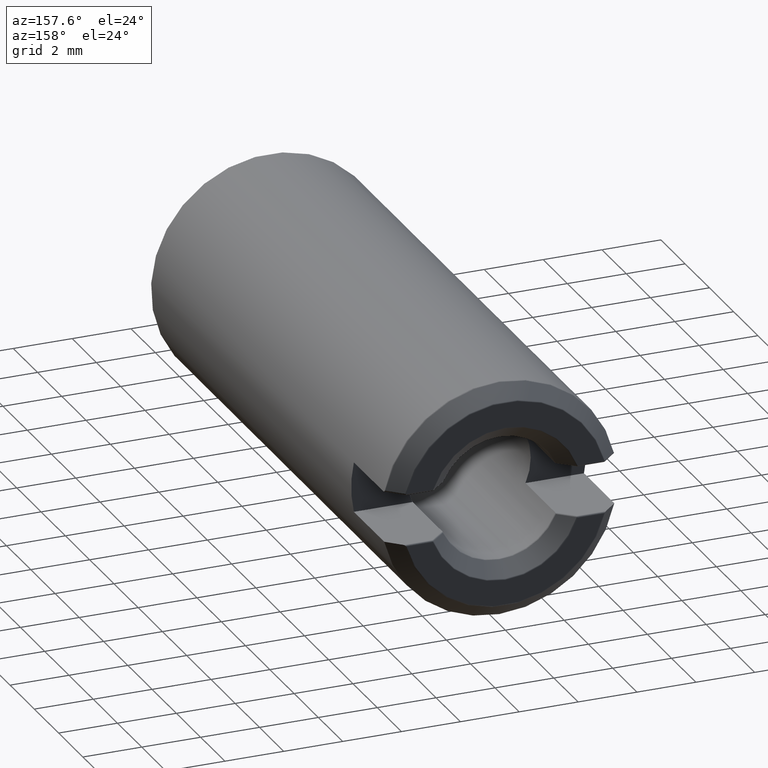
[diagram: clean part render]
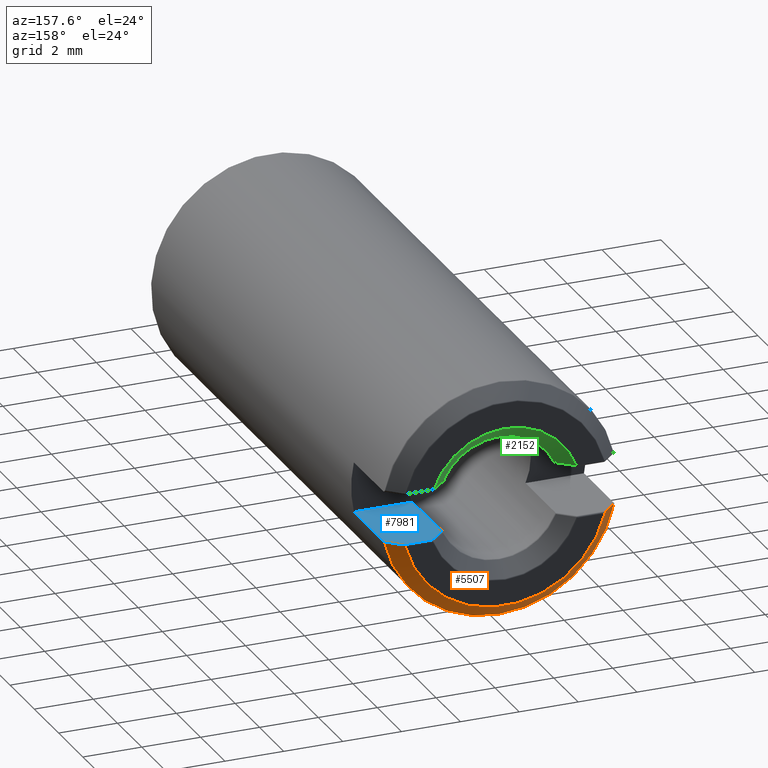
[diagram: same view with three faces highlighted in distinct colors, each labeled with its STEP entity id]
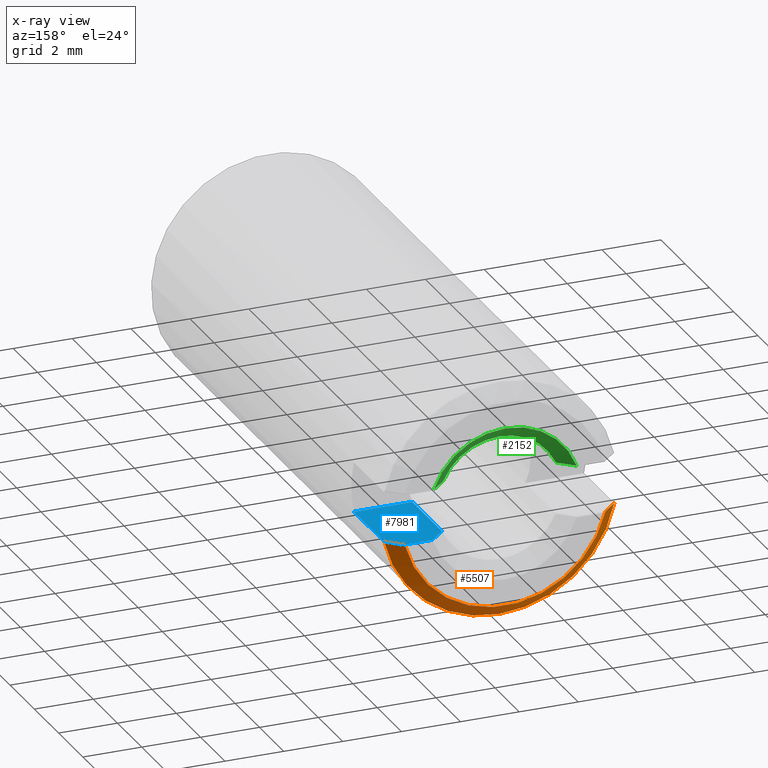
[diagram: x-ray of the same camera — body ghosted, the three highlighted faces saturated]
A machine part, auxiliary view with three faces highlighted in distinct colors.
The next image is the same camera in x-ray (body ghosted, the three faces saturated) — at least one of them is partly hidden behind the body in this view.
Their STEP definitions:

[orange] entity #5507 — the highlighted conical surface has half-angle 45 deg.
#854 = AXIS2_PLACEMENT_3D ( 'NONE', #10848, #16114, #2962 ) ;
#860 = CARTESIAN_POINT ( 'NONE',  ( 3.413783755023975800, 19.97978918212717800, -0.8590785040085277000 ) ) ;
#1144 = CARTESIAN_POINT ( 'NONE',  ( -3.406628348233122800, 19.98535533905932500, -0.8646446609406720500 ) ) ;
#1414 = ORIENTED_EDGE ( 'NONE', *, *, #12482, .F. ) ;
#1785 = CARTESIAN_POINT ( 'NONE',  ( -3.406628348233122800, 19.98535533905932500, -0.8646446609406720500 ) ) ;
#2116 = CARTESIAN_POINT ( 'NONE',  ( 3.421557193899200200, 19.97320914280686200, -0.8551126045072399200 ) ) ;
#2309 = VERTEX_POINT ( 'NONE', #16806 ) ;
#2962 = DIRECTION ( 'NONE',  ( 0.0000000000000000000, 0.0000000000000000000, 1.000000000000000000 ) ) ;
#2989 = CARTESIAN_POINT ( 'NONE',  ( 3.406628348233122300, 19.98535533905932500, -0.8646446609406728300 ) ) ;
#3139 = ORIENTED_EDGE ( 'NONE', *, *, #3599, .T. ) ;
#3364 = CARTESIAN_POINT ( 'NONE',  ( 3.429278687820470400, 19.96629116178431200, -0.8527284647201165400 ) ) ;
#3599 = EDGE_CURVE ( 'NONE', #9604, #12897, #13572, .T. ) ;
#4207 = CONICAL_SURFACE ( 'NONE', #11415, 4.000000000000001800, 0.7853981633974533900 ) ;
#4566 = CARTESIAN_POINT ( 'NONE',  ( 3.446737587914361400, 19.95000000000820300, -0.8500000000000004200 ) ) ;
#4725 = CARTESIAN_POINT ( 'NONE',  ( 3.600961503309973100, 19.80026215038831700, -0.8500000000000004200 ) ) ;
#4800 = CARTESIAN_POINT ( 'NONE',  ( 3.406628348233122300, 19.98535533905932500, -0.8646446609406728300 ) ) ;
#5507 = ADVANCED_FACE ( 'NONE', ( #11381 ), #4207, .T. ) ;
#5510 = EDGE_CURVE ( 'NONE', #7641, #2309, #13016, .T. ) ;
#6113 = CARTESIAN_POINT ( 'NONE',  ( 3.435093850324896000, 19.96108113581539100, -0.8509329364924507200 ) ) ;
#6455 = CARTESIAN_POINT ( 'NONE',  ( -3.421100546148008200, 19.97347055789400700, -0.8558510145966644600 ) ) ;
#6947 = CARTESIAN_POINT ( 'NONE',  ( -3.446737587922805700, 19.95000000000000600, -0.8499999999999995300 ) ) ;
#7074 = CARTESIAN_POINT ( 'NONE',  ( 3.446737587914361400, 19.95000000000820300, -0.8500000000000004200 ) ) ;
#7155 = ORIENTED_EDGE ( 'NONE', *, *, #9229, .T. ) ;
#7475 = CARTESIAN_POINT ( 'NONE',  ( 3.446737587914361400, 19.95000000000820300, -0.8500000000000004200 ) ) ;
#7641 = VERTEX_POINT ( 'NONE', #14487 ) ;
#7952 = ORIENTED_EDGE ( 'NONE', *, *, #11839, .T. ) ;
#8123 = VERTEX_POINT ( 'NONE', #7074 ) ;
#8200 = CARTESIAN_POINT ( 'NONE',  ( -3.600963028556099000, 19.80026066950853500, -0.8499999999999995300 ) ) ;
#9229 = EDGE_CURVE ( 'NONE', #12897, #12926, #15844, .T. ) ;
#9603 = CARTESIAN_POINT ( 'NONE',  ( -3.908644266238622500, 19.49999999999999300, -0.8499999999999995300 ) ) ;
#9604 = VERTEX_POINT ( 'NONE', #10985 ) ;
#9750 = DIRECTION ( 'NONE',  ( -0.0000000000000000000, -1.000000000000000000, -0.0000000000000000000 ) ) ;
#10848 = CARTESIAN_POINT ( 'NONE',  ( 0.0000000000000000000, 19.49999999999999600, 0.0000000000000000000 ) ) ;
#10985 = CARTESIAN_POINT ( 'NONE',  ( -3.446737587922805700, 19.95000000000000600, -0.8499999999999995300 ) ) ;
#11381 = FACE_OUTER_BOUND ( 'NONE', #12270, .T. ) ;
#11415 = AXIS2_PLACEMENT_3D ( 'NONE', #13440, #9750, #13555 ) ;
#11638 = CARTESIAN_POINT ( 'NONE',  ( -3.446737587922805700, 19.95000000000000600, -0.8499999999999995300 ) ) ;
#11758 = CARTESIAN_POINT ( 'NONE',  ( -3.438308068090482300, 19.95818432193076200, -0.8499999999999995300 ) ) ;
#11839 = EDGE_CURVE ( 'NONE', #12926, #8123, #13548, .T. ) ;
#12236 = ORIENTED_EDGE ( 'NONE', *, *, #5510, .F. ) ;
#12270 = EDGE_LOOP ( 'NONE', ( #7155, #7952, #1414, #12236, #13454, #3139 ) ) ;
#12440 = CARTESIAN_POINT ( 'NONE',  ( 3.440989608047434300, 19.95558078261709100, -0.8500000000004902500 ) ) ;
#12482 = EDGE_CURVE ( 'NONE', #2309, #8123, #16050, .T. ) ;
#12775 = CARTESIAN_POINT ( 'NONE',  ( 0.0000000000000000000, 19.98535533905932500, 0.0000000000000000000 ) ) ;
#12897 = VERTEX_POINT ( 'NONE', #1785 ) ;
#12926 = VERTEX_POINT ( 'NONE', #2989 ) ;
#12928 = B_SPLINE_CURVE_WITH_KNOTS ( 'NONE', 3,
 ( #6947, #8200, #16130, #9603 ),
 .UNSPECIFIED., .F., .F.,
 ( 4, 4 ),
 ( 0.01633955276823465700, 0.01698314241241307600 ),
 .UNSPECIFIED. ) ;
#12949 = CARTESIAN_POINT ( 'NONE',  ( -3.411266994350519600, 19.98174695829261400, -0.8610362801739589500 ) ) ;
#13016 = CIRCLE ( 'NONE', #854, 4.000000000000001800 ) ;
#13440 = CARTESIAN_POINT ( 'NONE',  ( 0.0000000000000000000, 19.49999999999999600, 0.0000000000000000000 ) ) ;
#13454 = ORIENTED_EDGE ( 'NONE', *, *, #16387, .F. ) ;
#13548 = B_SPLINE_CURVE_WITH_KNOTS ( 'NONE', 3,
 ( #4800, #860, #2116, #3364, #6113, #12440, #4566 ),
 .UNSPECIFIED., .F., .F.,
 ( 4, 3, 4 ),
 ( 0.0000000000000000000, 3.191357815980696000E-005, 5.579866581709318100E-005 ),
 .UNSPECIFIED. ) ;
#13555 = DIRECTION ( 'NONE',  ( 0.0000000000000000000, 0.0000000000000000000, -1.000000000000000000 ) ) ;
#13572 = B_SPLINE_CURVE_WITH_KNOTS ( 'NONE', 3,
 ( #11638, #11758, #14472, #6455, #16971, #12949, #1144 ),
 .UNSPECIFIED., .F., .F.,
 ( 4, 3, 4 ),
 ( 4.964888371025411900E-018, 3.524711861456428000E-005, 5.575765607681479800E-005 ),
 .UNSPECIFIED. ) ;
#14006 = DIRECTION ( 'NONE',  ( -0.0000000000000000000, -1.000000000000000000, -0.0000000000000000000 ) ) ;
#14119 = DIRECTION ( 'NONE',  ( 0.0000000000000000000, 0.0000000000000000000, 1.000000000000000000 ) ) ;
#14199 = AXIS2_PLACEMENT_3D ( 'NONE', #12775, #14006, #14119 ) ;
#14472 = CARTESIAN_POINT ( 'NONE',  ( -3.429520768752341900, 19.96623552209397400, -0.8520047126928127500 ) ) ;
#14487 = CARTESIAN_POINT ( 'NONE',  ( -3.908644266238622500, 19.49999999999999300, -0.8499999999999995300 ) ) ;
#15251 = CARTESIAN_POINT ( 'NONE',  ( 3.754901000658285700, 19.65023193337083600, -0.8500000000000004200 ) ) ;
#15844 = CIRCLE ( 'NONE', #14199, 3.514644660940668100 ) ;
#16050 = B_SPLINE_CURVE_WITH_KNOTS ( 'NONE', 3,
 ( #16726, #15251, #4725, #7475 ),
 .UNSPECIFIED., .F., .F.,
 ( 4, 4 ),
 ( 0.006837128135379534400, 0.007481998324507780100 ),
 .UNSPECIFIED. ) ;
#16114 = DIRECTION ( 'NONE',  ( -0.0000000000000000000, -1.000000000000000000, -0.0000000000000000000 ) ) ;
#16130 = CARTESIAN_POINT ( 'NONE',  ( -3.754902345862619400, 19.65023061888953400, -0.8499999999999995300 ) ) ;
#16387 = EDGE_CURVE ( 'NONE', #9604, #7641, #12928, .T. ) ;
#16726 = CARTESIAN_POINT ( 'NONE',  ( 3.908644266238617200, 19.49999999999999600, -0.8500000000000004200 ) ) ;
#16806 = CARTESIAN_POINT ( 'NONE',  ( 3.908644266238617200, 19.49999999999999600, -0.8500000000000004200 ) ) ;
#16971 = CARTESIAN_POINT ( 'NONE',  ( -3.416158209025641000, 19.97771723731051100, -0.8581086414524502500 ) ) ;

[blue] entity #7981 — the highlighted planar face has unit normal (-0, 0, -1).
#63 = CARTESIAN_POINT ( 'NONE',  ( 2.215812044525621500, 19.72090446999042600, -0.8500000000000003100 ) ) ;
#276 = CARTESIAN_POINT ( 'NONE',  ( 12.49999999999999800, 17.00000000000000000, -0.8500000000000014200 ) ) ;
#791 = CARTESIAN_POINT ( 'NONE',  ( 3.908644266238617200, 0.0000000000000000000, -0.8500000000000004200 ) ) ;
#826 = VECTOR ( 'NONE', #2613, 1000.000000000000000 ) ;
#1017 = LINE ( 'NONE', #9766, #3440 ) ;
#1633 = CARTESIAN_POINT ( 'NONE',  ( 3.908644266238617200, 17.00000000000000000, -0.8500000000000004200 ) ) ;
#2309 = VERTEX_POINT ( 'NONE', #16806 ) ;
#2613 = DIRECTION ( 'NONE',  ( -1.000000000000000000, 0.0000000000000000000, 1.214306433183765000E-016 ) ) ;
#2799 = EDGE_CURVE ( 'NONE', #10881, #11293, #6939, .T. ) ;
#3437 = VECTOR ( 'NONE', #9327, 1000.000000000000000 ) ;
#3440 = VECTOR ( 'NONE', #8424, 1000.000000000000000 ) ;
#4192 = ORIENTED_EDGE ( 'NONE', *, *, #16786, .T. ) ;
#4695 = VECTOR ( 'NONE', #10038, 1000.000000000000000 ) ;
#4725 = CARTESIAN_POINT ( 'NONE',  ( 3.600961503309973100, 19.80026215038831700, -0.8500000000000004200 ) ) ;
#5364 = DIRECTION ( 'NONE',  ( -1.214306433183765000E-016, 0.0000000000000000000, -1.000000000000000000 ) ) ;
#5380 = CARTESIAN_POINT ( 'NONE',  ( 2.461325752192560700, 19.94999999999999900, -0.8500000000000003100 ) ) ;
#6393 = FACE_OUTER_BOUND ( 'NONE', #13717, .T. ) ;
#6554 = CARTESIAN_POINT ( 'NONE',  ( 1.920286436967147300, 20.00000000000000000, -0.8500000000000002000 ) ) ;
#6583 = CARTESIAN_POINT ( 'NONE',  ( 2.379734714731919400, 19.87337112092297900, -0.8500000000000003100 ) ) ;
#6939 = LINE ( 'NONE', #6554, #3437 ) ;
#7074 = CARTESIAN_POINT ( 'NONE',  ( 3.446737587914361400, 19.95000000000820300, -0.8500000000000004200 ) ) ;
#7089 = ORIENTED_EDGE ( 'NONE', *, *, #15957, .T. ) ;
#7365 = ORIENTED_EDGE ( 'NONE', *, *, #12482, .T. ) ;
#7475 = CARTESIAN_POINT ( 'NONE',  ( 3.446737587914361400, 19.95000000000820300, -0.8500000000000004200 ) ) ;
#7894 = CARTESIAN_POINT ( 'NONE',  ( 2.297921189293646600, 19.79697792691201400, -0.8500000000000003100 ) ) ;
#7981 = ADVANCED_FACE ( 'NONE', ( #6393 ), #9343, .F. ) ;
#8123 = VERTEX_POINT ( 'NONE', #7074 ) ;
#8424 = DIRECTION ( 'NONE',  ( -1.000000000000000000, 0.0000000000000000000, 1.214306433183765000E-016 ) ) ;
#8804 = LINE ( 'NONE', #791, #4695 ) ;
#9244 = CARTESIAN_POINT ( 'NONE',  ( 2.117787020285274200, 19.63008507977690800, -0.8500000000000003100 ) ) ;
#9327 = DIRECTION ( 'NONE',  ( 0.0000000000000000000, -1.000000000000000000, 0.0000000000000000000 ) ) ;
#9343 = PLANE ( 'NONE',  #12734 ) ;
#9347 = CARTESIAN_POINT ( 'NONE',  ( 1.920286436967147300, 19.45002032792619300, -0.8500000000000002000 ) ) ;
#9400 = DIRECTION ( 'NONE',  ( -1.000000000000000000, 0.0000000000000000000, 1.214306433183765000E-016 ) ) ;
#9511 = ORIENTED_EDGE ( 'NONE', *, *, #10771, .T. ) ;
#9766 = CARTESIAN_POINT ( 'NONE',  ( 12.49999999999999800, 17.00000000000000000, -0.8500000000000014200 ) ) ;
#10038 = DIRECTION ( 'NONE',  ( 0.0000000000000000000, 1.000000000000000000, 0.0000000000000000000 ) ) ;
#10677 = CARTESIAN_POINT ( 'NONE',  ( 1.920286436967147300, 19.45002032792619300, -0.8500000000000002000 ) ) ;
#10771 = EDGE_CURVE ( 'NONE', #8123, #15723, #11919, .T. ) ;
#10881 = VERTEX_POINT ( 'NONE', #9347 ) ;
#11293 = VERTEX_POINT ( 'NONE', #15456 ) ;
#11355 = VERTEX_POINT ( 'NONE', #1633 ) ;
#11919 = LINE ( 'NONE', #15658, #826 ) ;
#11942 = CARTESIAN_POINT ( 'NONE',  ( 2.019342555962501800, 19.53971398603897900, -0.8500000000000002000 ) ) ;
#12482 = EDGE_CURVE ( 'NONE', #2309, #8123, #16050, .T. ) ;
#12734 = AXIS2_PLACEMENT_3D ( 'NONE', #276, #5364, #9400 ) ;
#13289 = ORIENTED_EDGE ( 'NONE', *, *, #16439, .F. ) ;
#13717 = EDGE_LOOP ( 'NONE', ( #9511, #4192, #13937, #13289, #7089, #7365 ) ) ;
#13937 = ORIENTED_EDGE ( 'NONE', *, *, #2799, .T. ) ;
#15251 = CARTESIAN_POINT ( 'NONE',  ( 3.754901000658285700, 19.65023193337083600, -0.8500000000000004200 ) ) ;
#15456 = CARTESIAN_POINT ( 'NONE',  ( 1.920286436967147300, 17.00000000000000000, -0.8500000000000002000 ) ) ;
#15658 = CARTESIAN_POINT ( 'NONE',  ( 2.457132475061128300, 19.94999999999999900, -0.8500000000000003100 ) ) ;
#15723 = VERTEX_POINT ( 'NONE', #5380 ) ;
#15897 = CARTESIAN_POINT ( 'NONE',  ( 2.461325752192560700, 19.94999999999999900, -0.8500000000000003100 ) ) ;
#15957 = EDGE_CURVE ( 'NONE', #11355, #2309, #8804, .T. ) ;
#16050 = B_SPLINE_CURVE_WITH_KNOTS ( 'NONE', 3,
 ( #16726, #15251, #4725, #7475 ),
 .UNSPECIFIED., .F., .F.,
 ( 4, 4 ),
 ( 0.006837128135379534400, 0.007481998324507780100 ),
 .UNSPECIFIED. ) ;
#16092 = B_SPLINE_CURVE_WITH_KNOTS ( 'NONE', 3,
 ( #15897, #6583, #7894, #63, #9244, #11942, #10677 ),
 .UNSPECIFIED., .F., .F.,
 ( 4, 3, 4 ),
 ( 1.433280826459710200E-016, 0.0003358001526545682700, 0.0007366943400334867000 ),
 .UNSPECIFIED. ) ;
#16439 = EDGE_CURVE ( 'NONE', #11355, #11293, #1017, .T. ) ;
#16726 = CARTESIAN_POINT ( 'NONE',  ( 3.908644266238617200, 19.49999999999999600, -0.8500000000000004200 ) ) ;
#16786 = EDGE_CURVE ( 'NONE', #15723, #10881, #16092, .T. ) ;
#16806 = CARTESIAN_POINT ( 'NONE',  ( 3.908644266238617200, 19.49999999999999600, -0.8500000000000004200 ) ) ;

[green] entity #2152 — the highlighted conical surface has half-angle 45 deg.
#1443 = CARTESIAN_POINT ( 'NONE',  ( 0.0000000000000000000, 19.51464466094066800, 0.0000000000000000000 ) ) ;
#2152 = ADVANCED_FACE ( 'NONE', ( #15187 ), #12113, .F. ) ;
#2386 = DIRECTION ( 'NONE',  ( 0.0000000000000000000, 1.000000000000000000, 0.0000000000000000000 ) ) ;
#2615 = ORIENTED_EDGE ( 'NONE', *, *, #5694, .T. ) ;
#2736 = CARTESIAN_POINT ( 'NONE',  ( 1.920453811368555900, 19.51464466094066800, 0.8852000906263278700 ) ) ;
#2748 = DIRECTION ( 'NONE',  ( 0.0000000000000000000, 0.0000000000000000000, 1.000000000000000000 ) ) ;
#3420 = B_SPLINE_CURVE_WITH_KNOTS ( 'NONE', 3,
 ( #5152, #14312, #3595, #10167, #4984, #15605, #10280 ),
 .UNSPECIFIED., .F., .F.,
 ( 4, 3, 4 ),
 ( 0.0000000000000000000, 0.0003568470537110428600, 0.0006923198707791736400 ),
 .UNSPECIFIED. ) ;
#3515 = CARTESIAN_POINT ( 'NONE',  ( -2.428120634500107000, 19.98535533905932500, 0.8878583296435214000 ) ) ;
#3595 = CARTESIAN_POINT ( 'NONE',  ( -2.095885261583293700, 19.67532775983235600, 0.8862450341868494100 ) ) ;
#4860 = ORIENTED_EDGE ( 'NONE', *, *, #13143, .T. ) ;
#4984 = CARTESIAN_POINT ( 'NONE',  ( -2.265005027130703400, 19.83234456096735000, 0.8871185304477248200 ) ) ;
#5039 = CARTESIAN_POINT ( 'NONE',  ( 2.428120634500107000, 19.98535533905932500, 0.8878583296435207400 ) ) ;
#5152 = CARTESIAN_POINT ( 'NONE',  ( -1.920453811368555400, 19.51464466094066800, 0.8852000906263283200 ) ) ;
#5694 = EDGE_CURVE ( 'NONE', #6127, #16999, #6861, .T. ) ;
#5803 = CIRCLE ( 'NONE', #9908, 2.114644660940669100 ) ;
#6127 = VERTEX_POINT ( 'NONE', #3515 ) ;
#6281 = VERTEX_POINT ( 'NONE', #6387 ) ;
#6387 = CARTESIAN_POINT ( 'NONE',  ( -1.920453811368555400, 19.51464466094066800, 0.8852000906263283200 ) ) ;
#6392 = EDGE_CURVE ( 'NONE', #6281, #6127, #3420, .T. ) ;
#6597 = EDGE_CURVE ( 'NONE', #16999, #15768, #7009, .T. ) ;
#6695 = CARTESIAN_POINT ( 'NONE',  ( 1.920453811368555900, 19.51464466094066800, 0.8852000906263278700 ) ) ;
#6861 = CIRCLE ( 'NONE', #13167, 2.585355339059332000 ) ;
#7009 = B_SPLINE_CURVE_WITH_KNOTS ( 'NONE', 3,
 ( #5039, #14193, #16803, #12954, #14310, #16976, #6695 ),
 .UNSPECIFIED., .F., .F.,
 ( 4, 3, 4 ),
 ( 4.145467954643513100E-017, 0.0003354742628745116500, 0.0006923228545096602900 ),
 .UNSPECIFIED. ) ;
#7319 = DIRECTION ( 'NONE',  ( 0.0000000000000000000, 1.000000000000000000, 0.0000000000000000000 ) ) ;
#8270 = ORIENTED_EDGE ( 'NONE', *, *, #6392, .T. ) ;
#8702 = AXIS2_PLACEMENT_3D ( 'NONE', #16629, #7319, #9993 ) ;
#9908 = AXIS2_PLACEMENT_3D ( 'NONE', #1443, #10574, #2748 ) ;
#9993 = DIRECTION ( 'NONE',  ( 0.0000000000000000000, 0.0000000000000000000, 1.000000000000000000 ) ) ;
#10167 = CARTESIAN_POINT ( 'NONE',  ( -2.183055609533193700, 19.75625980904975200, 0.8866952652568073100 ) ) ;
#10280 = CARTESIAN_POINT ( 'NONE',  ( -2.428120634500107000, 19.98535533905932500, 0.8878583296435214000 ) ) ;
#10431 = EDGE_LOOP ( 'NONE', ( #13755, #4860, #8270, #2615 ) ) ;
#10574 = DIRECTION ( 'NONE',  ( -0.0000000000000000000, -1.000000000000000000, -0.0000000000000000000 ) ) ;
#11352 = DIRECTION ( 'NONE',  ( 0.0000000000000000000, 0.0000000000000000000, -1.000000000000000000 ) ) ;
#12113 = CONICAL_SURFACE ( 'NONE', #8702, 2.099999999999995600, 0.7853981633974538300 ) ;
#12546 = CARTESIAN_POINT ( 'NONE',  ( 2.428120634500107000, 19.98535533905932500, 0.8878583296435207400 ) ) ;
#12954 = CARTESIAN_POINT ( 'NONE',  ( 2.183055609533193700, 19.75625980904975200, 0.8866952652568069700 ) ) ;
#13143 = EDGE_CURVE ( 'NONE', #15768, #6281, #5803, .T. ) ;
#13167 = AXIS2_PLACEMENT_3D ( 'NONE', #16793, #2386, #11352 ) ;
#13755 = ORIENTED_EDGE ( 'NONE', *, *, #6597, .T. ) ;
#14193 = CARTESIAN_POINT ( 'NONE',  ( 2.346670048818007400, 19.90873646567506200, 0.8875033568067797200 ) ) ;
#14310 = CARTESIAN_POINT ( 'NONE',  ( 2.095885261583293700, 19.67532775983235600, 0.8862450341868490800 ) ) ;
#14312 = CARTESIAN_POINT ( 'NONE',  ( -2.008393468414221100, 19.59473948970848400, 0.8857514376993811400 ) ) ;
#15187 = FACE_OUTER_BOUND ( 'NONE', #10431, .T. ) ;
#15605 = CARTESIAN_POINT ( 'NONE',  ( -2.346670048818006600, 19.90873646567506200, 0.8875033568067802700 ) ) ;
#15768 = VERTEX_POINT ( 'NONE', #2736 ) ;
#16629 = CARTESIAN_POINT ( 'NONE',  ( 0.0000000000000000000, 19.49999999999999600, 0.0000000000000000000 ) ) ;
#16793 = CARTESIAN_POINT ( 'NONE',  ( 0.0000000000000000000, 19.98535533905932500, 0.0000000000000000000 ) ) ;
#16803 = CARTESIAN_POINT ( 'NONE',  ( 2.265005027130703400, 19.83234456096735000, 0.8871185304477242600 ) ) ;
#16976 = CARTESIAN_POINT ( 'NONE',  ( 2.008393468414221100, 19.59473948970848400, 0.8857514376993806900 ) ) ;
#16999 = VERTEX_POINT ( 'NONE', #12546 ) ;